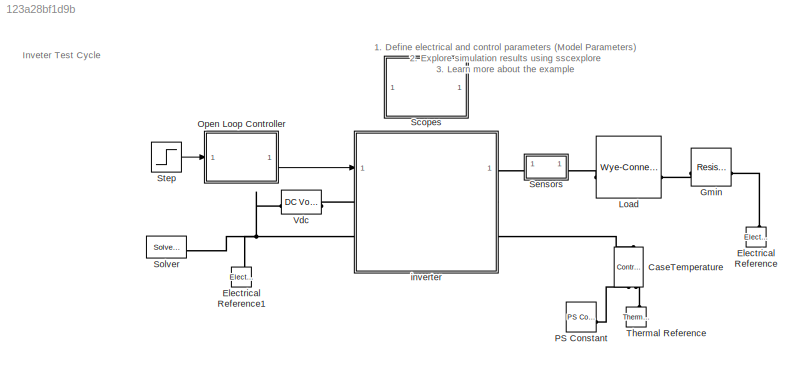
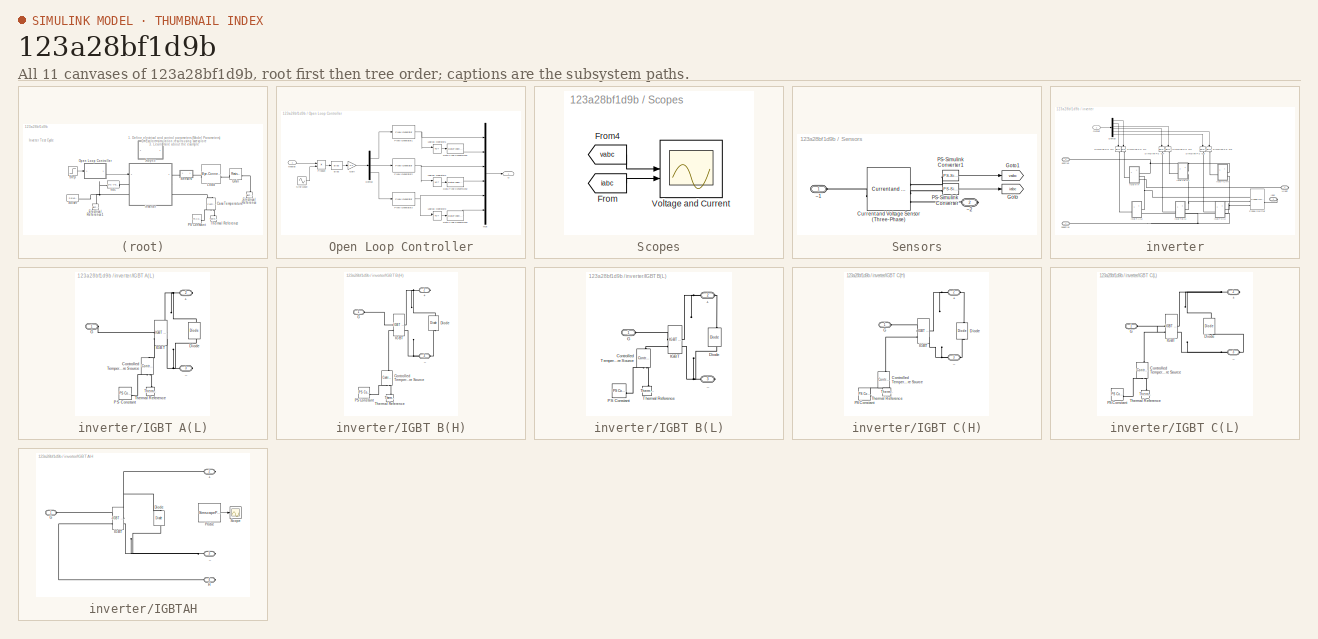
[diagram: thumbnail index - all 11 canvases of the model, root first then tree order]
MODEL slx_123a28bf1d9b
KIND model
CONFIG AbsTol = auto
CONFIG EnableMultiTasking = off
CONFIG FixedStep = auto
CONFIG MaxStep = auto
CONFIG MinStep = auto
CONFIG PreLoadFcn = %InverterParams;\nelectricDrive.PmsmControlParams.Ts = 5e-6;\nelectricDrive.PmsmControlParams.fsw=10000;\nelectricDrive.PMparams.RthIGBT = [0.01,0.07,0.08,0.045]/6;\nelectricDrive.PMparams.tauthIGBT = [0.001,0.03,0.25,1.5]*6;
CONFIG RelTol = 1e-3
CONFIG SampleTimeConstraint = Unconstrained
CONFIG SolverName = daessc
CONFIG StartTime = 0.0
CONFIG StopTime = 2
BLOCK [Reference] CaseTemperature  REF=fl_lib/Thermal/Thermal Sources/Controlled
Temperature Source
  NameLocation = right
  SourceBlock = fl_lib/Thermal/Thermal Sources/Controlled\nTemperature Source
  SourceType = Controlled\nTemperature Source
BLOCK [Reference] Electrical Reference  REF=fl_lib/Electrical/Electrical Elements/Electrical Reference
  NameLocation = right
  SourceBlock = fl_lib/Electrical/Electrical Elements/Electrical Reference
  SourceType = Electrical Reference
BLOCK [Reference] Electrical Reference1  REF=fl_lib/Electrical/Electrical Elements/Electrical Reference
  NameLocation = right
  SourceBlock = fl_lib/Electrical/Electrical Elements/Electrical Reference
  SourceType = Electrical Reference
BLOCK [Reference] Gmin  REF=fl_lib/Electrical/Electrical Elements/Resistor
  SourceBlock = fl_lib/Electrical/Electrical Elements/Resistor
  SourceType = Resistor
BLOCK [Reference] Load  REF=ee_lib/Passive/RLC Assemblies/Wye-Connected Load
  SourceBlock = ee_lib/Passive/RLC Assemblies/Wye-Connected Load
  SourceType = Wye-Connected Load
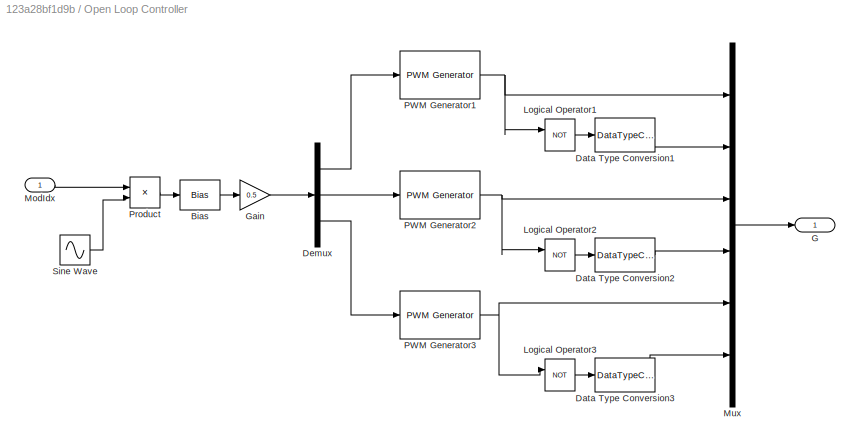
BLOCK [SubSystem] Open Loop Controller
  NameLocation = top
  VariantControl = Open Loop
BLOCK [Bias] Open Loop Controller/Bias
  Bias = 1
  SaturateOnIntegerOverflow = off
BLOCK [DataTypeConversion] Open Loop Controller/Data Type Conversion1
  RndMeth = Floor
  SaturateOnIntegerOverflow = off
BLOCK [DataTypeConversion] Open Loop Controller/Data Type Conversion2
  RndMeth = Floor
  SaturateOnIntegerOverflow = off
BLOCK [DataTypeConversion] Open Loop Controller/Data Type Conversion3
  RndMeth = Floor
  SaturateOnIntegerOverflow = off
BLOCK [Demux] Open Loop Controller/Demux
  Outputs = 3
BLOCK [Outport] Open Loop Controller/G
BLOCK [Gain] Open Loop Controller/Gain
  Gain = 0.5
BLOCK [Logic] Open Loop Controller/Logical Operator1
  AllPortsSameDT = off
  Operator = NOT
  OutDataTypeStr = boolean
BLOCK [Logic] Open Loop Controller/Logical Operator2
  AllPortsSameDT = off
  Operator = NOT
  OutDataTypeStr = boolean
BLOCK [Logic] Open Loop Controller/Logical Operator3
  AllPortsSameDT = off
  Operator = NOT
  OutDataTypeStr = boolean
BLOCK [Inport] Open Loop Controller/ModIdx
BLOCK [Mux] Open Loop Controller/Mux
  DisplayOption = bar
  Inputs = 6
BLOCK [Reference] Open Loop Controller/PWM Generator1  REF=eePwmGenerator/PWM Generator
  SourceBlock = eePwmGenerator/PWM Generator
  SourceType = PWM Generator
BLOCK [Reference] Open Loop Controller/PWM Generator2  REF=eePwmGenerator/PWM Generator
  SourceBlock = eePwmGenerator/PWM Generator
  SourceType = PWM Generator
BLOCK [Reference] Open Loop Controller/PWM Generator3  REF=eePwmGenerator/PWM Generator
  SourceBlock = eePwmGenerator/PWM Generator
  SourceType = PWM Generator
BLOCK [Product] Open Loop Controller/Product
  RndMeth = Zero
BLOCK [Sin] Open Loop Controller/Sine Wave
  Frequency = 2*pi*60
  Phase = [0 -1 1]*2*pi/3
  SampleTime = electricDrive.PmsmControlParams.Ts
BLOCK [Reference] PS Constant  REF=fl_lib/Physical Signals/Sources/PS Constant
  SourceBlock = fl_lib/Physical Signals/Sources/PS Constant
  SourceType = PS Constant
BLOCK [SubSystem] Scopes
BLOCK [From] Scopes/From
  GotoTag = iabc
  IconDisplay = Signal name
  NameLocation = top
  TagVisibility = global
BLOCK [From] Scopes/From4
  GotoTag = vabc
  IconDisplay = Signal name
  NameLocation = top
  TagVisibility = global
BLOCK [Scope] Scopes/Voltage and Current
  Floating = off
  NumInputPorts = 2
  ScopeSpecificationString = Simulink.scopes.TimeScopeBlockCfg('CurrentConfiguration', extmgr.ConfigurationSet(extmgr.Configuration('Core','General UI',true),extmgr.Configuration('Core','Source UI',true),extmgr.Configuration('Sources','WiredSimulink',true),extmgr.Configuration('Visuals','Time Domain',true,'SerializedDisplays',{struct('MinYLimReal','-725.24684','MaxYLimReal','725.67353','YLabelReal','[V]','MinYLimMag',' 0.0000...<+2314ch>
BLOCK [SubSystem] Sensors
BLOCK [Reference] Sensors/Current and Voltage Sensor (Three-Phase)  REF=ee_lib/Sensors &
Transducers/Current and Voltage
Sensor (Three-Phase)
  SourceBlock = ee_lib/Sensors &\nTransducers/Current and Voltage\nSensor (Three-Phase)
  SourceType = Current and Voltage\nSensor (Three-Phase)
BLOCK [Goto] Sensors/Goto
  GotoTag = iabc
  TagVisibility = global
BLOCK [Goto] Sensors/Goto1
  GotoTag = vabc
  TagVisibility = global
BLOCK [Reference] Sensors/PS-Simulink Converter  REF=nesl_utility_internal/PS-Simulink
Converter
  SourceBlock = nesl_utility_internal/PS-Simulink\nConverter
  SourceType = PS-Simulink\nConverter
BLOCK [Reference] Sensors/PS-Simulink Converter1  REF=nesl_utility_internal/PS-Simulink
Converter
  SourceBlock = nesl_utility_internal/PS-Simulink\nConverter
  SourceType = PS-Simulink\nConverter
BLOCK [PMIOPort] Sensors/~1
  Side = Left
BLOCK [PMIOPort] Sensors/~2
  Port = 2
  Side = Right
BLOCK [Reference] Solver  REF=nesl_utility_internal/Solver
Configuration
  SourceBlock = nesl_utility_internal/Solver\nConfiguration
  SourceType = Solver\nConfiguration
BLOCK [Step] Step
  After = 0
  Before = 0.8
  SampleTime = 0
BLOCK [Reference] Thermal Reference  REF=fl_lib/Thermal/Thermal Elements/Thermal Reference
  NameLocation = right
  SourceBlock = fl_lib/Thermal/Thermal Elements/Thermal Reference
  SourceType = Thermal Reference
BLOCK [Reference] Vdc  REF=fl_lib/Electrical/Electrical Sources/DC Voltage Source
  SourceBlock = fl_lib/Electrical/Electrical Sources/DC Voltage Source
  SourceType = DC Voltage Source
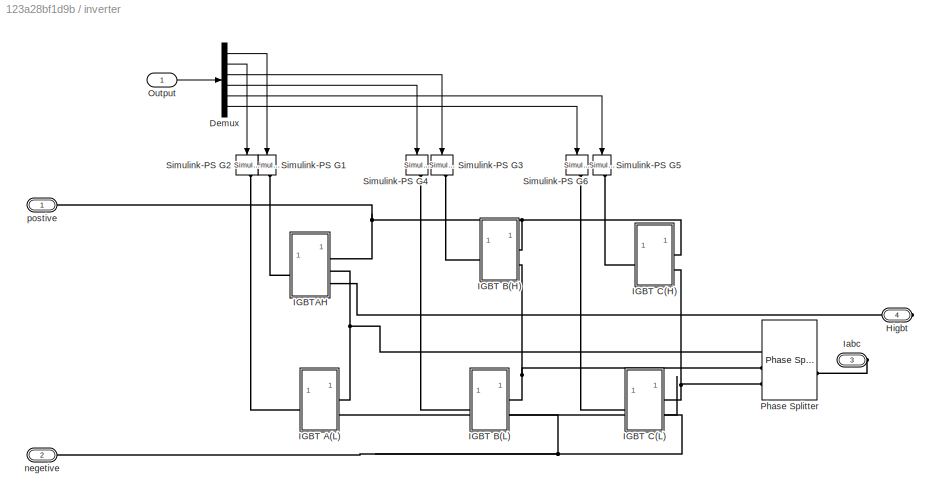
BLOCK [SubSystem] inverter
BLOCK [Demux] inverter/Demux
  Outputs = 6
BLOCK [PMIOPort] inverter/Higbt
  NameLocation = top
  Port = 4
  Side = Right
BLOCK [SubSystem] inverter/IGBT A(L)
BLOCK [PMIOPort] inverter/IGBT A(L)/+
  Port = 2
  Side = Right
BLOCK [Reference] inverter/IGBT A(L)/Controlled Temperature Source  REF=fl_lib/Thermal/Thermal Sources/Controlled
Temperature Source
  NameLocation = right
  SourceBlock = fl_lib/Thermal/Thermal Sources/Controlled\nTemperature Source
  SourceType = Controlled\nTemperature Source
BLOCK [Reference] inverter/IGBT A(L)/Diode  REF=fl_lib/Electrical/Electrical Elements/Diode
  NameLocation = right
  SourceBlock = fl_lib/Electrical/Electrical Elements/Diode
  SourceType = Diode
BLOCK [PMIOPort] inverter/IGBT A(L)/G
  Side = Left
BLOCK [Reference] inverter/IGBT A(L)/IGBT  REF=ee_lib/Semiconductors &
Converters/IGBT
(Ideal,
Switching)
  SourceBlock = ee_lib/Semiconductors &\nConverters/IGBT\n(Ideal,\nSwitching)
  SourceType = IGBT\n(Ideal,\nSwitching)
BLOCK [Reference] inverter/IGBT A(L)/PS Constant  REF=fl_lib/Physical Signals/Sources/PS Constant
  SourceBlock = fl_lib/Physical Signals/Sources/PS Constant
  SourceType = PS Constant
BLOCK [Reference] inverter/IGBT A(L)/Thermal Reference  REF=fl_lib/Thermal/Thermal Elements/Thermal Reference
  NameLocation = right
  SourceBlock = fl_lib/Thermal/Thermal Elements/Thermal Reference
  SourceType = Thermal Reference
BLOCK [PMIOPort] inverter/IGBT A(L)/_
  Port = 3
  Side = Right
BLOCK [SubSystem] inverter/IGBT B(H)
BLOCK [PMIOPort] inverter/IGBT B(H)/+
  Port = 2
  Side = Right
BLOCK [Reference] inverter/IGBT B(H)/Controlled Temperature Source  REF=fl_lib/Thermal/Thermal Sources/Controlled
Temperature Source
  NameLocation = right
  SourceBlock = fl_lib/Thermal/Thermal Sources/Controlled\nTemperature Source
  SourceType = Controlled\nTemperature Source
BLOCK [Reference] inverter/IGBT B(H)/Diode  REF=fl_lib/Electrical/Electrical Elements/Diode
  NameLocation = right
  SourceBlock = fl_lib/Electrical/Electrical Elements/Diode
  SourceType = Diode
BLOCK [PMIOPort] inverter/IGBT B(H)/G
  Side = Left
BLOCK [Reference] inverter/IGBT B(H)/IGBT  REF=ee_lib/Semiconductors &
Converters/IGBT
(Ideal,
Switching)
  SourceBlock = ee_lib/Semiconductors &\nConverters/IGBT\n(Ideal,\nSwitching)
  SourceType = IGBT\n(Ideal,\nSwitching)
BLOCK [Reference] inverter/IGBT B(H)/PS Constant  REF=fl_lib/Physical Signals/Sources/PS Constant
  SourceBlock = fl_lib/Physical Signals/Sources/PS Constant
  SourceType = PS Constant
BLOCK [Reference] inverter/IGBT B(H)/Thermal Reference  REF=fl_lib/Thermal/Thermal Elements/Thermal Reference
  NameLocation = right
  SourceBlock = fl_lib/Thermal/Thermal Elements/Thermal Reference
  SourceType = Thermal Reference
BLOCK [PMIOPort] inverter/IGBT B(H)/_
  Port = 3
  Side = Right
BLOCK [SubSystem] inverter/IGBT B(L)
BLOCK [PMIOPort] inverter/IGBT B(L)/+
  Port = 2
  Side = Right
BLOCK [Reference] inverter/IGBT B(L)/Controlled Temperature Source  REF=fl_lib/Thermal/Thermal Sources/Controlled
Temperature Source
  NameLocation = right
  SourceBlock = fl_lib/Thermal/Thermal Sources/Controlled\nTemperature Source
  SourceType = Controlled\nTemperature Source
BLOCK [Reference] inverter/IGBT B(L)/Diode  REF=fl_lib/Electrical/Electrical Elements/Diode
  NameLocation = right
  SourceBlock = fl_lib/Electrical/Electrical Elements/Diode
  SourceType = Diode
BLOCK [PMIOPort] inverter/IGBT B(L)/G
  Side = Left
BLOCK [Reference] inverter/IGBT B(L)/IGBT  REF=ee_lib/Semiconductors &
Converters/IGBT
(Ideal,
Switching)
  SourceBlock = ee_lib/Semiconductors &\nConverters/IGBT\n(Ideal,\nSwitching)
  SourceType = IGBT\n(Ideal,\nSwitching)
BLOCK [Reference] inverter/IGBT B(L)/PS Constant  REF=fl_lib/Physical Signals/Sources/PS Constant
  SourceBlock = fl_lib/Physical Signals/Sources/PS Constant
  SourceType = PS Constant
BLOCK [Reference] inverter/IGBT B(L)/Thermal Reference  REF=fl_lib/Thermal/Thermal Elements/Thermal Reference
  NameLocation = right
  SourceBlock = fl_lib/Thermal/Thermal Elements/Thermal Reference
  SourceType = Thermal Reference
BLOCK [PMIOPort] inverter/IGBT B(L)/_
  Port = 3
  Side = Right
BLOCK [SubSystem] inverter/IGBT C(H)
BLOCK [PMIOPort] inverter/IGBT C(H)/+
  Port = 2
  Side = Right
BLOCK [Reference] inverter/IGBT C(H)/Controlled Temperature Source  REF=fl_lib/Thermal/Thermal Sources/Controlled
Temperature Source
  NameLocation = right
  SourceBlock = fl_lib/Thermal/Thermal Sources/Controlled\nTemperature Source
  SourceType = Controlled\nTemperature Source
BLOCK [Reference] inverter/IGBT C(H)/Diode  REF=fl_lib/Electrical/Electrical Elements/Diode
  NameLocation = right
  SourceBlock = fl_lib/Electrical/Electrical Elements/Diode
  SourceType = Diode
BLOCK [PMIOPort] inverter/IGBT C(H)/G
  Side = Left
BLOCK [Reference] inverter/IGBT C(H)/IGBT  REF=ee_lib/Semiconductors &
Converters/IGBT
(Ideal,
Switching)
  SourceBlock = ee_lib/Semiconductors &\nConverters/IGBT\n(Ideal,\nSwitching)
  SourceType = IGBT\n(Ideal,\nSwitching)
BLOCK [Reference] inverter/IGBT C(H)/PS Constant  REF=fl_lib/Physical Signals/Sources/PS Constant
  SourceBlock = fl_lib/Physical Signals/Sources/PS Constant
  SourceType = PS Constant
BLOCK [Reference] inverter/IGBT C(H)/Thermal Reference  REF=fl_lib/Thermal/Thermal Elements/Thermal Reference
  NameLocation = right
  SourceBlock = fl_lib/Thermal/Thermal Elements/Thermal Reference
  SourceType = Thermal Reference
BLOCK [PMIOPort] inverter/IGBT C(H)/_
  Port = 3
  Side = Right
BLOCK [SubSystem] inverter/IGBT C(L)
BLOCK [PMIOPort] inverter/IGBT C(L)/+
  Port = 2
  Side = Right
BLOCK [Reference] inverter/IGBT C(L)/Controlled Temperature Source  REF=fl_lib/Thermal/Thermal Sources/Controlled
Temperature Source
  NameLocation = right
  SourceBlock = fl_lib/Thermal/Thermal Sources/Controlled\nTemperature Source
  SourceType = Controlled\nTemperature Source
BLOCK [Reference] inverter/IGBT C(L)/Diode  REF=fl_lib/Electrical/Electrical Elements/Diode
  NameLocation = right
  SourceBlock = fl_lib/Electrical/Electrical Elements/Diode
  SourceType = Diode
BLOCK [PMIOPort] inverter/IGBT C(L)/G
  Side = Left
BLOCK [Reference] inverter/IGBT C(L)/IGBT  REF=ee_lib/Semiconductors &
Converters/IGBT
(Ideal,
Switching)
  SourceBlock = ee_lib/Semiconductors &\nConverters/IGBT\n(Ideal,\nSwitching)
  SourceType = IGBT\n(Ideal,\nSwitching)
BLOCK [Reference] inverter/IGBT C(L)/PS Constant  REF=fl_lib/Physical Signals/Sources/PS Constant
  SourceBlock = fl_lib/Physical Signals/Sources/PS Constant
  SourceType = PS Constant
BLOCK [Reference] inverter/IGBT C(L)/Thermal Reference  REF=fl_lib/Thermal/Thermal Elements/Thermal Reference
  NameLocation = right
  SourceBlock = fl_lib/Thermal/Thermal Elements/Thermal Reference
  SourceType = Thermal Reference
BLOCK [PMIOPort] inverter/IGBT C(L)/_
  Port = 3
  Side = Right
BLOCK [SubSystem] inverter/IGBTAH
  PortSchema = {"entries":[{"content":{"sides":[{"content":{"connectorIds":["LConn1"]},"type":"ConnectorPlacement.EquallySpacedRectSide","uuid":"2b8258a9-eab6-4733-bf1a-264e37610360"},{"content":{"connectorIds":["RConn1","RConn2"],"side":"RIGHT"},"type":"ConnectorPlacement.EquallySpacedRectSide","uuid":"ea3b5c72-2381-4c3b-a7f6-1422e3f31464"},{"content":{"connectorIds":[],"side":"TOP"},"type":"ConnectorPlacement....<+406ch>
BLOCK [PMIOPort] inverter/IGBTAH/+
  Port = 2
  Side = Right
BLOCK [Reference] inverter/IGBTAH/Diode  REF=fl_lib/Electrical/Electrical Elements/Diode
  NameLocation = right
  SourceBlock = fl_lib/Electrical/Electrical Elements/Diode
  SourceType = Diode
BLOCK [PMIOPort] inverter/IGBTAH/G
  Side = Left
BLOCK [PMIOPort] inverter/IGBTAH/H
  NameLocation = top
  Port = 4
  Side = Right
BLOCK [Reference] inverter/IGBTAH/IGBT  REF=ee_lib/Semiconductors &
Converters/IGBT
(Ideal,
Switching)
  SourceBlock = ee_lib/Semiconductors &\nConverters/IGBT\n(Ideal,\nSwitching)
  SourceType = IGBT\n(Ideal,\nSwitching)
BLOCK [SimscapeProbe] inverter/IGBTAH/Probe
  BoundBlock = 61
  Variables = {"IGBT_junction_temperature":{"Unit":"degC","PortLabel":"IGBT_junction_temperature","Probing":"ON"}}
BLOCK [Scope] inverter/IGBTAH/Scope
  Floating = off
  NumInputPorts = 1
  ScopeSpecificationString = Simulink.scopes.TimeScopeBlockCfg('CurrentConfiguration', extmgr.ConfigurationSet(extmgr.Configuration('Core','General UI',true),extmgr.Configuration('Core','Source UI',true),extmgr.Configuration('Sources','WiredSimulink',true,'DataLoggingVariableName','ScopeData1'),extmgr.Configuration('Visuals','Time Domain',true,'SerializedDisplays',{struct('MinYLimReal','24.27419','MaxYLimReal','31.53227','YLa...<+1468ch>
BLOCK [PMIOPort] inverter/IGBTAH/_
  Port = 3
  Side = Right
BLOCK [PMIOPort] inverter/Iabc
  NameLocation = top
  Port = 3
  Side = Right
BLOCK [Inport] inverter/Output
BLOCK [Reference] inverter/Phase Splitter  REF=ee_lib/Connectors &
References/Phase Splitter
  SourceBlock = ee_lib/Connectors &\nReferences/Phase Splitter
  SourceType = Phase Splitter
BLOCK [Reference] inverter/Simulink-PS G1  REF=nesl_utility_internal/Simulink-PS
Converter
  AttributesFormatString = %<Unit>
  NameLocation = right
  SourceBlock = nesl_utility_internal/Simulink-PS\nConverter
  SourceType = Simulink-PS\nConverter
BLOCK [Reference] inverter/Simulink-PS G2  REF=nesl_utility_internal/Simulink-PS
Converter
  AttributesFormatString = %<Unit>
  NameLocation = left
  SourceBlock = nesl_utility_internal/Simulink-PS\nConverter
  SourceType = Simulink-PS\nConverter
BLOCK [Reference] inverter/Simulink-PS G3  REF=nesl_utility_internal/Simulink-PS
Converter
  AttributesFormatString = %<Unit>
  NameLocation = right
  SourceBlock = nesl_utility_internal/Simulink-PS\nConverter
  SourceType = Simulink-PS\nConverter
BLOCK [Reference] inverter/Simulink-PS G4  REF=nesl_utility_internal/Simulink-PS
Converter
  AttributesFormatString = %<Unit>
  NameLocation = left
  SourceBlock = nesl_utility_internal/Simulink-PS\nConverter
  SourceType = Simulink-PS\nConverter
BLOCK [Reference] inverter/Simulink-PS G5  REF=nesl_utility_internal/Simulink-PS
Converter
  AttributesFormatString = %<Unit>
  NameLocation = right
  SourceBlock = nesl_utility_internal/Simulink-PS\nConverter
  SourceType = Simulink-PS\nConverter
BLOCK [Reference] inverter/Simulink-PS G6  REF=nesl_utility_internal/Simulink-PS
Converter
  AttributesFormatString = %<Unit>
  NameLocation = left
  SourceBlock = nesl_utility_internal/Simulink-PS\nConverter
  SourceType = Simulink-PS\nConverter
BLOCK [PMIOPort] inverter/negetive
  Port = 2
  Side = Left
BLOCK [PMIOPort] inverter/postive
  Side = Left
ANNOTATION (root): 1. Define electrical and control parameters ( Model Parameters ) 2. Explore simulation results using sscexplore 3. Learn more about the example
ANNOTATION (root): Inveter Test Cycle
LINE Open Loop Controller/Bias:1 -> Open Loop Controller/Gain:1
LINE Open Loop Controller/Data Type Conversion1:1 -> Open Loop Controller/Mux:2
LINE Open Loop Controller/Data Type Conversion2:1 -> Open Loop Controller/Mux:4
LINE Open Loop Controller/Data Type Conversion3:1 -> Open Loop Controller/Mux:6
LINE Open Loop Controller/Demux:1 -> Open Loop Controller/PWM Generator1:1
LINE Open Loop Controller/Demux:2 -> Open Loop Controller/PWM Generator2:1
LINE Open Loop Controller/Demux:3 -> Open Loop Controller/PWM Generator3:1
LINE Open Loop Controller/Gain:1 -> Open Loop Controller/Demux:1
LINE Open Loop Controller/Logical Operator1:1 -> Open Loop Controller/Data Type Conversion1:1
LINE Open Loop Controller/Logical Operator2:1 -> Open Loop Controller/Data Type Conversion2:1
LINE Open Loop Controller/Logical Operator3:1 -> Open Loop Controller/Data Type Conversion3:1
LINE Open Loop Controller/ModIdx:1 -> Open Loop Controller/Product:1
LINE Open Loop Controller/Mux:1 -> Open Loop Controller/G:1
NET Open Loop Controller/PWM Generator1:1 -> Open Loop Controller/Logical Operator1:1, Open Loop Controller/Mux:1
NET Open Loop Controller/PWM Generator2:1 -> Open Loop Controller/Logical Operator2:1, Open Loop Controller/Mux:3
NET Open Loop Controller/PWM Generator3:1 -> Open Loop Controller/Logical Operator3:1, Open Loop Controller/Mux:5
LINE Open Loop Controller/Product:1 -> Open Loop Controller/Bias:1
LINE Open Loop Controller/Sine Wave:1 -> Open Loop Controller/Product:2
LINE Open Loop Controller:1 -> inverter:1
LINE Scopes/From4:1 -> Scopes/Voltage and Current:1
LINE Scopes/From:1 -> Scopes/Voltage and Current:2
LINE Sensors/PS-Simulink Converter1:1 -> Sensors/Goto1:1
LINE Sensors/PS-Simulink Converter:1 -> Sensors/Goto:1
LINE Step:1 -> Open Loop Controller:1
LINE inverter/Demux:1 -> inverter/Simulink-PS G1:1
LINE inverter/Demux:2 -> inverter/Simulink-PS G2:1
LINE inverter/Demux:3 -> inverter/Simulink-PS G3:1
LINE inverter/Demux:4 -> inverter/Simulink-PS G4:1
LINE inverter/Demux:5 -> inverter/Simulink-PS G5:1
LINE inverter/Demux:6 -> inverter/Simulink-PS G6:1
LINE inverter/IGBTAH/Probe:1 -> inverter/IGBTAH/Scope:1
LINE inverter/Output:1 -> inverter/Demux:1
PLINE CaseTemperature:LConn1 -- inverter:RConn2
PLINE CaseTemperature:RConn1 -- PS Constant:RConn1
PLINE CaseTemperature:RConn2 -- Thermal Reference:LConn1
PNET net1: Electrical Reference1:LConn1 -- Solver:RConn1 -- Vdc:RConn1 -- inverter:LConn2
PLINE Electrical Reference:LConn1 -- Gmin:RConn1
PLINE Gmin:LConn1 -- Load:RConn1
PLINE Load:LConn1 -- Sensors:RConn1
PLINE Sensors/Current and Voltage Sensor (Three-Phase):LConn1 -- Sensors/~1:RConn1
PLINE Sensors/Current and Voltage Sensor (Three-Phase):RConn1 -- Sensors/PS-Simulink Converter1:LConn1
PLINE Sensors/Current and Voltage Sensor (Three-Phase):RConn2 -- Sensors/PS-Simulink Converter:LConn1
PLINE Sensors/Current and Voltage Sensor (Three-Phase):RConn3 -- Sensors/~2:RConn1
PLINE Sensors:LConn1 -- inverter:RConn1
PLINE Vdc:LConn1 -- inverter:LConn1
PLINE inverter/Higbt:RConn1 -- inverter/IGBTAH:RConn3
PNET net2: inverter/IGBT A(L)/+:RConn1 -- inverter/IGBT A(L)/Diode:RConn1 -- inverter/IGBT A(L)/IGBT:RConn1
PLINE inverter/IGBT A(L)/Controlled Temperature Source:LConn1 -- inverter/IGBT A(L)/IGBT:LConn2
PLINE inverter/IGBT A(L)/Controlled Temperature Source:RConn1 -- inverter/IGBT A(L)/PS Constant:RConn1
PLINE inverter/IGBT A(L)/Controlled Temperature Source:RConn2 -- inverter/IGBT A(L)/Thermal Reference:LConn1
PNET net3: inverter/IGBT A(L)/Diode:LConn1 -- inverter/IGBT A(L)/IGBT:RConn2 -- inverter/IGBT A(L)/_:RConn1
PLINE inverter/IGBT A(L)/G:RConn1 -- inverter/IGBT A(L)/IGBT:LConn1
PLINE inverter/IGBT A(L):LConn1 -- inverter/Simulink-PS G2:RConn1
PNET net4: inverter/IGBT A(L):RConn1 -- inverter/IGBTAH:RConn2 -- inverter/Phase Splitter:RConn1
PNET net5: inverter/IGBT A(L):RConn2 -- inverter/IGBT B(L):RConn2 -- inverter/IGBT C(L):RConn2 -- inverter/negetive:RConn1
PNET net6: inverter/IGBT B(H)/+:RConn1 -- inverter/IGBT B(H)/Diode:RConn1 -- inverter/IGBT B(H)/IGBT:RConn1
PLINE inverter/IGBT B(H)/Controlled Temperature Source:LConn1 -- inverter/IGBT B(H)/IGBT:LConn2
PLINE inverter/IGBT B(H)/Controlled Temperature Source:RConn1 -- inverter/IGBT B(H)/PS Constant:RConn1
PLINE inverter/IGBT B(H)/Controlled Temperature Source:RConn2 -- inverter/IGBT B(H)/Thermal Reference:LConn1
PNET net7: inverter/IGBT B(H)/Diode:LConn1 -- inverter/IGBT B(H)/IGBT:RConn2 -- inverter/IGBT B(H)/_:RConn1
PLINE inverter/IGBT B(H)/G:RConn1 -- inverter/IGBT B(H)/IGBT:LConn1
PLINE inverter/IGBT B(H):LConn1 -- inverter/Simulink-PS G3:RConn1
PNET net8: inverter/IGBT B(H):RConn1 -- inverter/IGBT C(H):RConn1 -- inverter/IGBTAH:RConn1 -- inverter/postive:RConn1
PNET net9: inverter/IGBT B(H):RConn2 -- inverter/IGBT B(L):RConn1 -- inverter/Phase Splitter:RConn2
PNET net10: inverter/IGBT B(L)/+:RConn1 -- inverter/IGBT B(L)/Diode:RConn1 -- inverter/IGBT B(L)/IGBT:RConn1
PLINE inverter/IGBT B(L)/Controlled Temperature Source:LConn1 -- inverter/IGBT B(L)/IGBT:LConn2
PLINE inverter/IGBT B(L)/Controlled Temperature Source:RConn1 -- inverter/IGBT B(L)/PS Constant:RConn1
PLINE inverter/IGBT B(L)/Controlled Temperature Source:RConn2 -- inverter/IGBT B(L)/Thermal Reference:LConn1
PNET net11: inverter/IGBT B(L)/Diode:LConn1 -- inverter/IGBT B(L)/IGBT:RConn2 -- inverter/IGBT B(L)/_:RConn1
PLINE inverter/IGBT B(L)/G:RConn1 -- inverter/IGBT B(L)/IGBT:LConn1
PLINE inverter/IGBT B(L):LConn1 -- inverter/Simulink-PS G4:RConn1
PNET net12: inverter/IGBT C(H)/+:RConn1 -- inverter/IGBT C(H)/Diode:RConn1 -- inverter/IGBT C(H)/IGBT:RConn1
PLINE inverter/IGBT C(H)/Controlled Temperature Source:LConn1 -- inverter/IGBT C(H)/IGBT:LConn2
PLINE inverter/IGBT C(H)/Controlled Temperature Source:RConn1 -- inverter/IGBT C(H)/PS Constant:RConn1
PLINE inverter/IGBT C(H)/Controlled Temperature Source:RConn2 -- inverter/IGBT C(H)/Thermal Reference:LConn1
PNET net13: inverter/IGBT C(H)/Diode:LConn1 -- inverter/IGBT C(H)/IGBT:RConn2 -- inverter/IGBT C(H)/_:RConn1
PLINE inverter/IGBT C(H)/G:RConn1 -- inverter/IGBT C(H)/IGBT:LConn1
PLINE inverter/IGBT C(H):LConn1 -- inverter/Simulink-PS G5:RConn1
PNET net14: inverter/IGBT C(H):RConn2 -- inverter/IGBT C(L):RConn1 -- inverter/Phase Splitter:RConn3
PNET net15: inverter/IGBT C(L)/+:RConn1 -- inverter/IGBT C(L)/Diode:RConn1 -- inverter/IGBT C(L)/IGBT:RConn1
PLINE inverter/IGBT C(L)/Controlled Temperature Source:LConn1 -- inverter/IGBT C(L)/IGBT:LConn2
PLINE inverter/IGBT C(L)/Controlled Temperature Source:RConn1 -- inverter/IGBT C(L)/PS Constant:RConn1
PLINE inverter/IGBT C(L)/Controlled Temperature Source:RConn2 -- inverter/IGBT C(L)/Thermal Reference:LConn1
PNET net16: inverter/IGBT C(L)/Diode:LConn1 -- inverter/IGBT C(L)/IGBT:RConn2 -- inverter/IGBT C(L)/_:RConn1
PLINE inverter/IGBT C(L)/G:RConn1 -- inverter/IGBT C(L)/IGBT:LConn1
PLINE inverter/IGBT C(L):LConn1 -- inverter/Simulink-PS G6:RConn1
PNET net17: inverter/IGBTAH/+:RConn1 -- inverter/IGBTAH/Diode:RConn1 -- inverter/IGBTAH/IGBT:RConn1
PNET net18: inverter/IGBTAH/Diode:LConn1 -- inverter/IGBTAH/IGBT:RConn2 -- inverter/IGBTAH/_:RConn1
PLINE inverter/IGBTAH/G:RConn1 -- inverter/IGBTAH/IGBT:LConn1
PLINE inverter/IGBTAH/H:RConn1 -- inverter/IGBTAH/IGBT:LConn2
PLINE inverter/IGBTAH:LConn1 -- inverter/Simulink-PS G1:RConn1
PLINE inverter/Iabc:RConn1 -- inverter/Phase Splitter:LConn1
note: NET lines group one-source signal fan-out (src -> all destinations, sorted); 1:1 wires keep LINE; PNET lines group multi-terminal physical nets as a canonical sorted terminal list (undirected conserving connections); 2-terminal nets keep the pairwise PLINE form
